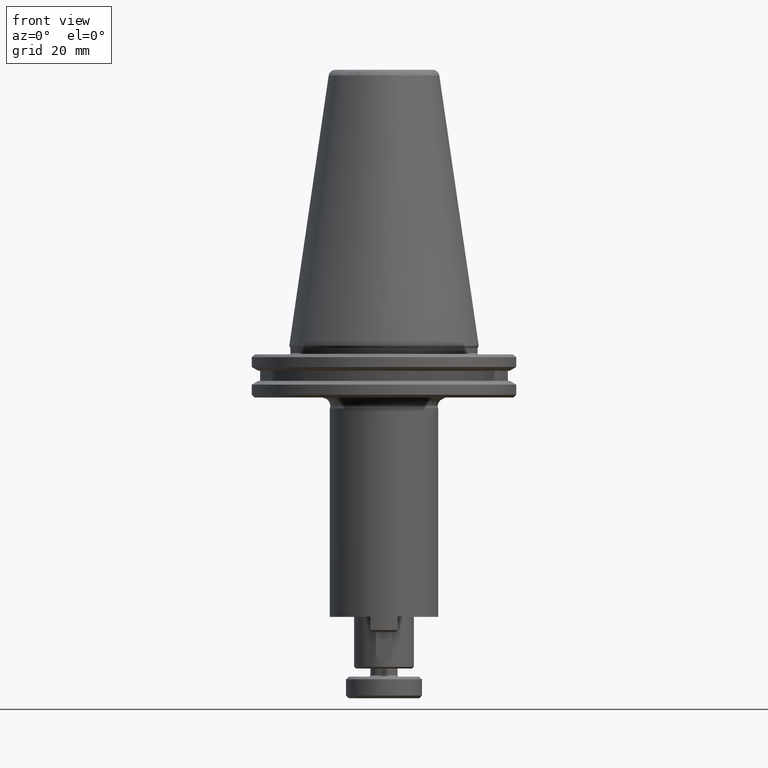
[diagram: clean part render]
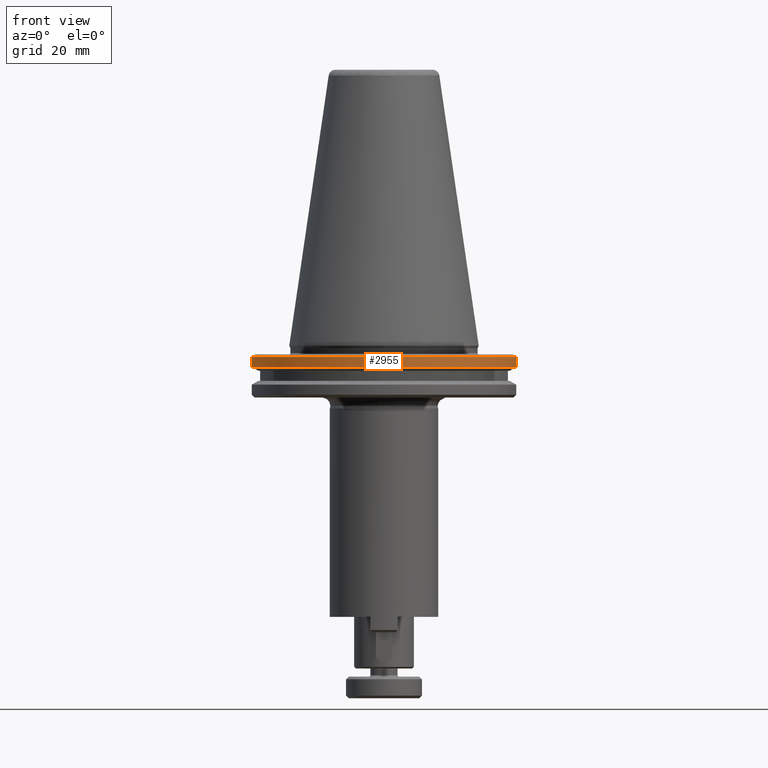
[diagram: same view with one face highlighted and labeled with its STEP entity id]
A machine part, front view. The second image highlights one B-rep face of the part: STEP entity #2955.
In plain terms, the highlighted cylindrical surface (partial cylindrical patch) has radius 48.75 mm, axis along (0, -0, 1).
Its self-contained STEP definition (entity closure, byte-faithful):
#10 = DIRECTION ( 'NONE',  ( -1.000000000000000000, 0.0000000000000000000, 0.0000000000000000000 ) ) ;
#25 = VERTEX_POINT ( 'NONE', #2597 ) ;
#47 = VERTEX_POINT ( 'NONE', #1472 ) ;
#148 = ORIENTED_EDGE ( 'NONE', *, *, #1275, .F. ) ;
#159 = DIRECTION ( 'NONE',  ( 0.0000000000000000000, -0.0000000000000000000, 1.000000000000000000 ) ) ;
#212 = CIRCLE ( 'NONE', #2508, 48.74999999902873800 ) ;
#245 = LINE ( 'NONE', #3050, #1641 ) ;
#270 = ORIENTED_EDGE ( 'NONE', *, *, #1591, .F. ) ;
#300 = DIRECTION ( 'NONE',  ( -0.0000000000000000000, -0.0000000000000000000, -1.000000000000000000 ) ) ;
#732 = AXIS2_PLACEMENT_3D ( 'NONE', #1896, #2392, #935 ) ;
#758 = EDGE_CURVE ( 'NONE', #25, #1753, #3063, .T. ) ;
#935 = DIRECTION ( 'NONE',  ( 1.000000000000000000, 0.0000000000000000000, 0.0000000000000000000 ) ) ;
#986 = VERTEX_POINT ( 'NONE', #1382 ) ;
#1095 = ORIENTED_EDGE ( 'NONE', *, *, #2784, .T. ) ;
#1275 = EDGE_CURVE ( 'NONE', #25, #47, #2921, .T. ) ;
#1326 = CARTESIAN_POINT ( 'NONE',  ( 89.44000914255850900, 102.4230254990840100, 94.45142735185173400 ) ) ;
#1354 = DIRECTION ( 'NONE',  ( 0.0000000000000000000, -0.0000000000000000000, 1.000000000000000000 ) ) ;
#1382 = CARTESIAN_POINT ( 'NONE',  ( 89.44000914255849500, 53.67302550005526000, 94.45142735185173400 ) ) ;
#1458 = DIRECTION ( 'NONE',  ( -0.0000000000000000000, -0.0000000000000000000, -1.000000000000000000 ) ) ;
#1472 = CARTESIAN_POINT ( 'NONE',  ( 40.69000914261425100, 102.4230254990840100, 90.79902261484829800 ) ) ;
#1573 = DIRECTION ( 'NONE',  ( -1.000000000000000000, 0.0000000000000000000, 0.0000000000000000000 ) ) ;
#1591 = EDGE_CURVE ( 'NONE', #47, #1708, #245, .T. ) ;
#1598 = AXIS2_PLACEMENT_3D ( 'NONE', #1326, #3022, #1573 ) ;
#1640 = EDGE_LOOP ( 'NONE', ( #270, #148, #1714, #2306, #1095 ) ) ;
#1641 = VECTOR ( 'NONE', #1354, 1000.000000000000000 ) ;
#1708 = VERTEX_POINT ( 'NONE', #1865 ) ;
#1714 = ORIENTED_EDGE ( 'NONE', *, *, #758, .T. ) ;
#1753 = VERTEX_POINT ( 'NONE', #2604 ) ;
#1776 = CARTESIAN_POINT ( 'NONE',  ( 89.44000914255849500, 102.4230254990840100, 90.79902261484829800 ) ) ;
#1865 = CARTESIAN_POINT ( 'NONE',  ( 40.69000914352977100, 102.4230254990840100, 94.45142735185173400 ) ) ;
#1896 = CARTESIAN_POINT ( 'NONE',  ( 89.44000914255849500, 102.4230254990840100, 90.79902261488047100 ) ) ;
#2013 = DIRECTION ( 'NONE',  ( 1.000000000000000000, 0.0000000000000000000, 0.0000000000000000000 ) ) ;
#2175 = CYLINDRICAL_SURFACE ( 'NONE', #732, 48.75000000000000000 ) ;
#2274 = FACE_OUTER_BOUND ( 'NONE', #1640, .T. ) ;
#2306 = ORIENTED_EDGE ( 'NONE', *, *, #3109, .T. ) ;
#2392 = DIRECTION ( 'NONE',  ( 0.0000000000000000000, -0.0000000000000000000, 1.000000000000000000 ) ) ;
#2508 = AXIS2_PLACEMENT_3D ( 'NONE', #2901, #1458, #10 ) ;
#2597 = CARTESIAN_POINT ( 'NONE',  ( 138.1900091425027300, 102.4230254990840100, 90.79902261484829800 ) ) ;
#2599 = CARTESIAN_POINT ( 'NONE',  ( 138.1900091425584900, 102.4230254990840100, 90.79902261488047100 ) ) ;
#2604 = CARTESIAN_POINT ( 'NONE',  ( 138.1900091415872400, 102.4230254990840100, 94.45142735185173400 ) ) ;
#2699 = CIRCLE ( 'NONE', #1598, 48.74999999902873800 ) ;
#2784 = EDGE_CURVE ( 'NONE', #986, #1708, #2699, .T. ) ;
#2874 = VECTOR ( 'NONE', #159, 1000.000000000000000 ) ;
#2901 = CARTESIAN_POINT ( 'NONE',  ( 89.44000914255850900, 102.4230254990840100, 94.45142735185173400 ) ) ;
#2921 = CIRCLE ( 'NONE', #3012, 48.74999999994424400 ) ;
#2955 = ADVANCED_FACE ( 'NONE', ( #2274 ), #2175, .T. ) ;
#3012 = AXIS2_PLACEMENT_3D ( 'NONE', #1776, #300, #2013 ) ;
#3022 = DIRECTION ( 'NONE',  ( -0.0000000000000000000, -0.0000000000000000000, -1.000000000000000000 ) ) ;
#3050 = CARTESIAN_POINT ( 'NONE',  ( 40.69000914255849500, 102.4230254990840100, 90.79902261488047100 ) ) ;
#3063 = LINE ( 'NONE', #2599, #2874 ) ;
#3109 = EDGE_CURVE ( 'NONE', #1753, #986, #212, .T. ) ;